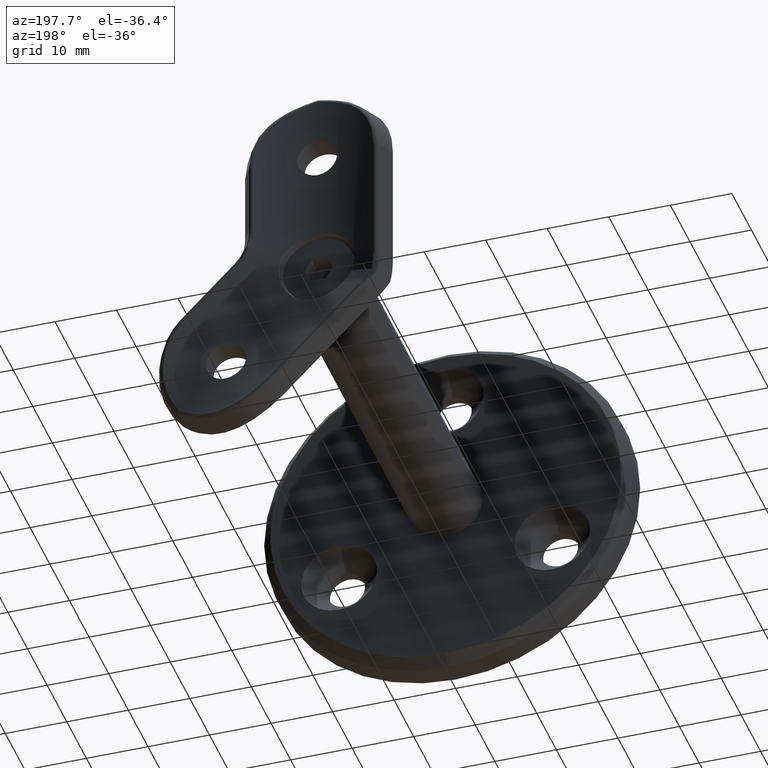
[diagram: clean part render]
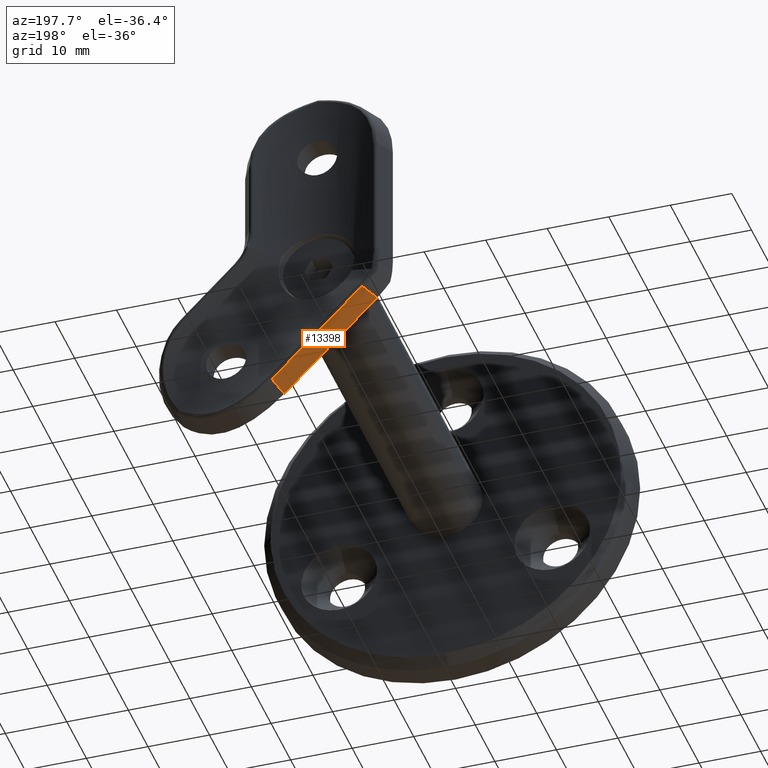
[diagram: same view with one face highlighted and labeled with its STEP entity id]
A machine part, auxiliary view. The second image highlights one B-rep face of the part: STEP entity #13398.
In plain terms, the highlighted planar face has unit normal (0.6196, -0.4819, 0.6196).
Its self-contained STEP definition (entity closure, byte-faithful):
#1056 = ORIENTED_EDGE ( 'NONE', *, *, #8305, .T. ) ;
#1932 = CARTESIAN_POINT ( 'NONE',  ( 5.656854249492415221, 3.082346597307952685, -55.12741699796951167 ) ) ;
#2333 = ORIENTED_EDGE ( 'NONE', *, *, #12963, .F. ) ;
#3726 = VERTEX_POINT ( 'NONE', #9069 ) ;
#3792 = DIRECTION ( 'NONE',  ( 0.7071067811865486830, 0.000000000000000000, -0.7071067811865463515 ) ) ;
#3795 = FACE_OUTER_BOUND ( 'NONE', #10064, .T. ) ;
#5852 = VECTOR ( 'NONE', #10121, 999.9999999999998863 ) ;
#5896 = ORIENTED_EDGE ( 'NONE', *, *, #6266, .T. ) ;
#6266 = EDGE_CURVE ( 'NONE', #17156, #14115, #16556, .T. ) ;
#7570 = CARTESIAN_POINT ( 'NONE',  ( -7.888692332457375223, 5.891269701761542521, -39.39698806776983275 ) ) ;
#7898 = AXIS2_PLACEMENT_3D ( 'NONE', #17300, #9277, #3792 ) ;
#7916 = VECTOR ( 'NONE', #8285, 999.9999999999998863 ) ;
#8285 = DIRECTION ( 'NONE',  ( 0.7071067811865487940, 2.432621927754641602E-18, -0.7071067811865463515 ) ) ;
#8305 = EDGE_CURVE ( 'NONE', #14115, #3726, #12794, .T. ) ;
#8375 = VECTOR ( 'NONE', #14927, 1000.000000000000227 ) ;
#9069 = CARTESIAN_POINT ( 'NONE',  ( 6.749295423617381218, 5.891269701761542521, -54.03497582384454034 ) ) ;
#9277 = DIRECTION ( 'NONE',  ( 0.6195747257277622877, -0.4819277108433732693, 0.6195747257277642861 ) ) ;
#10064 = EDGE_LOOP ( 'NONE', ( #5896, #1056, #16576, #2333 ) ) ;
#10121 = DIRECTION ( 'NONE',  ( 0.7071067811865487940, 0.000000000000000000, -0.7071067811865463515 ) ) ;
#10146 = VERTEX_POINT ( 'NONE', #1932 ) ;
#10457 = PLANE ( 'NONE',  #7898 ) ;
#10921 = CARTESIAN_POINT ( 'NONE',  ( -7.986281994056090738, 5.713838250724315060, -39.43741102915141994 ) ) ;
#12493 = CARTESIAN_POINT ( 'NONE',  ( -11.44540735872772963, 5.891269701761542521, -35.84027304149949344 ) ) ;
#12794 = LINE ( 'NONE', #12493, #7916 ) ;
#12865 = LINE ( 'NONE', #15568, #5852 ) ;
#12963 = EDGE_CURVE ( 'NONE', #17156, #10146, #12865, .T. ) ;
#13032 = CARTESIAN_POINT ( 'NONE',  ( 5.656854249492415221, 3.082346597307938918, -55.12741699796951167 ) ) ;
#13398 = ADVANCED_FACE ( 'NONE', ( #3795 ), #10457, .F. ) ;
#14083 = LINE ( 'NONE', #13032, #15311 ) ;
#14115 = VERTEX_POINT ( 'NONE', #7570 ) ;
#14248 = EDGE_CURVE ( 'NONE', #3726, #10146, #14083, .T. ) ;
#14927 = DIRECTION ( 'NONE',  ( 0.4726034150190179250, 0.8592581254844640082, 0.1957587441247181925 ) ) ;
#15093 = CARTESIAN_POINT ( 'NONE',  ( -9.433637456999692361, 3.082346597307952685, -40.03692529147745205 ) ) ;
#15311 = VECTOR ( 'NONE', #15660, 1000.000000000000000 ) ;
#15568 = CARTESIAN_POINT ( 'NONE',  ( -12.00000000000000000, 3.082346597307952685, -37.47056274847715684 ) ) ;
#15660 = DIRECTION ( 'NONE',  ( -0.3407743523790582874, -0.8762109800277932958, -0.3407743523790593976 ) ) ;
#16556 = LINE ( 'NONE', #10921, #8375 ) ;
#16576 = ORIENTED_EDGE ( 'NONE', *, *, #14248, .T. ) ;
#17156 = VERTEX_POINT ( 'NONE', #15093 ) ;
#17300 = CARTESIAN_POINT ( 'NONE',  ( -13.83632975536813703, -0.2563539139980863801, -38.23119543813990617 ) ) ;